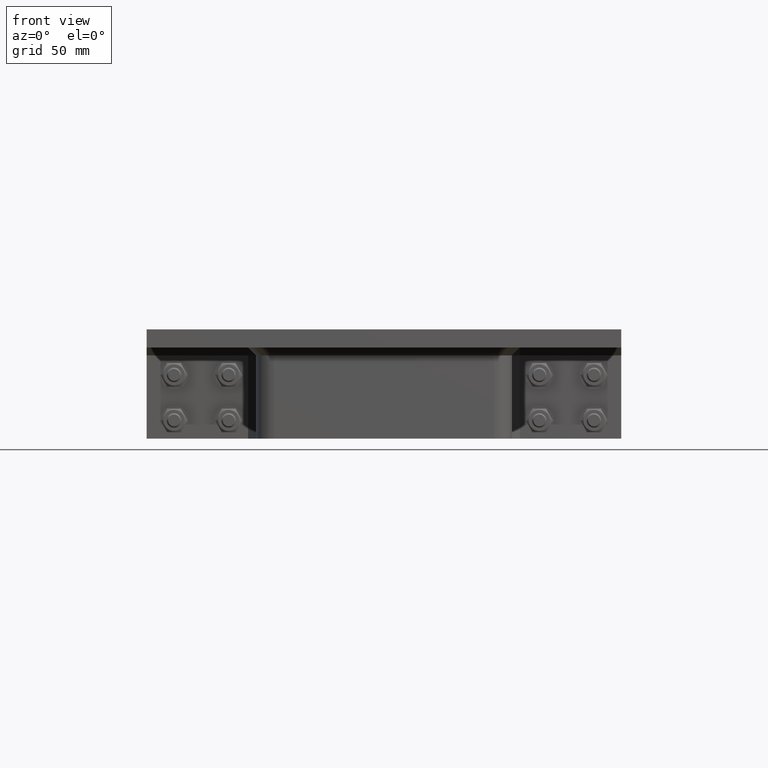
[diagram: clean part render]
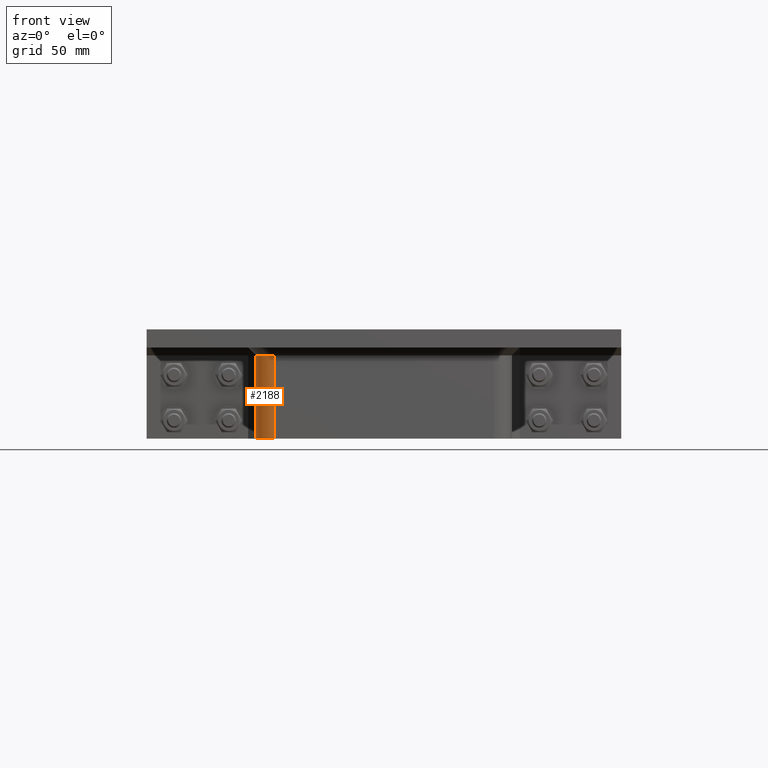
[diagram: same view with one face highlighted and labeled with its STEP entity id]
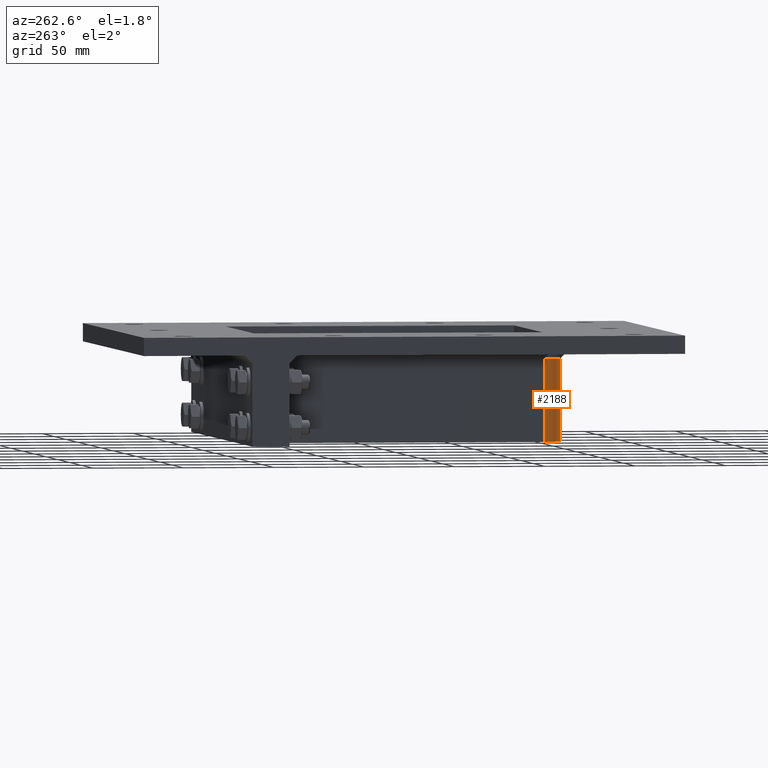
[diagram: same view with one face highlighted and labeled with its STEP entity id]
A machine part, front view. The second image highlights one B-rep face of the part: STEP entity #2188.
A second angle (auxiliary view) of the same face is appended — the face is thin or edge-on in the first view.
In plain terms, the highlighted cylindrical surface (edge-blend (fillet) strip) has radius 10 mm, axis along (0, 0, -1).
Its self-contained STEP definition (entity closure, byte-faithful):
#145=CYLINDRICAL_SURFACE('',#2515,10.);
#246=CIRCLE('',#2447,10.);
#272=CIRCLE('',#2491,10.);
#396=FACE_OUTER_BOUND('',#546,.T.);
#546=EDGE_LOOP('',(#1718,#1719,#1720,#1721));
#737=LINE('',#3545,#909);
#747=LINE('',#3567,#919);
#909=VECTOR('',#2884,10.);
#919=VECTOR('',#2918,10.);
#1027=VERTEX_POINT('',#3375);
#1029=VERTEX_POINT('',#3381);
#1075=VERTEX_POINT('',#3511);
#1076=VERTEX_POINT('',#3513);
#1223=EDGE_CURVE('',#1029,#1027,#246,.T.);
#1289=EDGE_CURVE('',#1075,#1076,#272,.T.);
#1306=EDGE_CURVE('',#1029,#1076,#737,.T.);
#1316=EDGE_CURVE('',#1027,#1075,#747,.T.);
#1718=ORIENTED_EDGE('',*,*,#1223,.F.);
#1719=ORIENTED_EDGE('',*,*,#1306,.T.);
#1720=ORIENTED_EDGE('',*,*,#1289,.F.);
#1721=ORIENTED_EDGE('',*,*,#1316,.F.);
#2188=ADVANCED_FACE('',(#396),#145,.T.);
#2447=AXIS2_PLACEMENT_3D('',#3383,#2721,#2722);
#2491=AXIS2_PLACEMENT_3D('',#3514,#2849,#2850);
#2515=AXIS2_PLACEMENT_3D('',#3566,#2916,#2917);
#2721=DIRECTION('center_axis',(0.,0.,1.));
#2722=DIRECTION('ref_axis',(-1.,0.,0.));
#2849=DIRECTION('center_axis',(0.,0.,-1.));
#2850=DIRECTION('ref_axis',(-1.,0.,0.));
#2884=DIRECTION('',(0.,0.,-1.));
#2916=DIRECTION('center_axis',(0.,0.,-1.));
#2917=DIRECTION('ref_axis',(-1.,0.,0.));
#2918=DIRECTION('',(0.,0.,-1.));
#3375=CARTESIAN_POINT('',(-60.25,-89.75,-14.3));
#3381=CARTESIAN_POINT('',(-70.25,-79.75,-14.3));
#3383=CARTESIAN_POINT('Origin',(-60.25,-79.75,-14.3));
#3511=CARTESIAN_POINT('',(-60.25,-89.75,-60.));
#3513=CARTESIAN_POINT('',(-70.25,-79.75,-60.));
#3514=CARTESIAN_POINT('Origin',(-60.25,-79.75,-60.));
#3545=CARTESIAN_POINT('',(-70.25,-79.75,0.));
#3566=CARTESIAN_POINT('Origin',(-60.25,-79.75,0.));
#3567=CARTESIAN_POINT('',(-60.25,-89.75,0.));